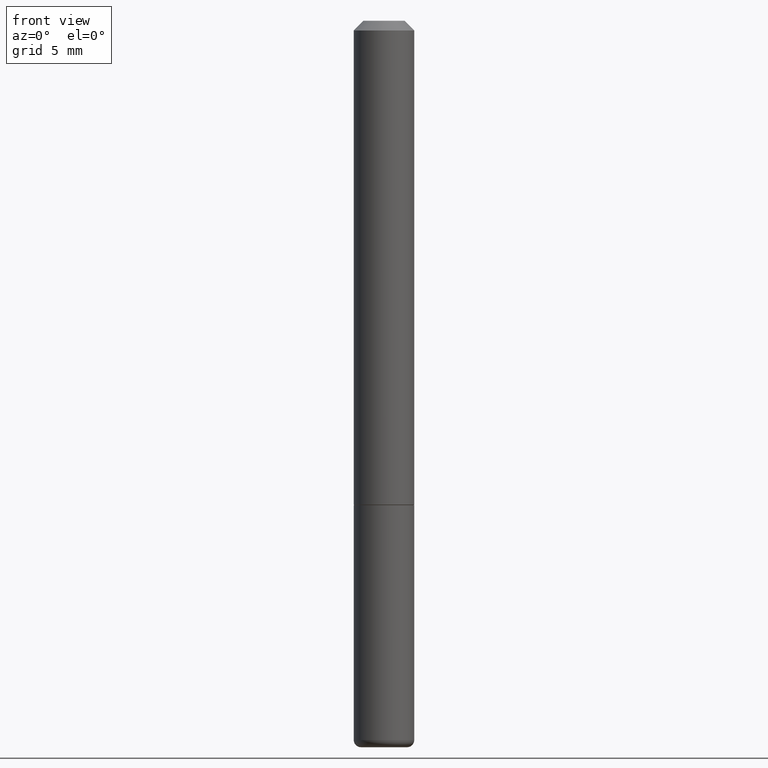
[diagram: clean part render]
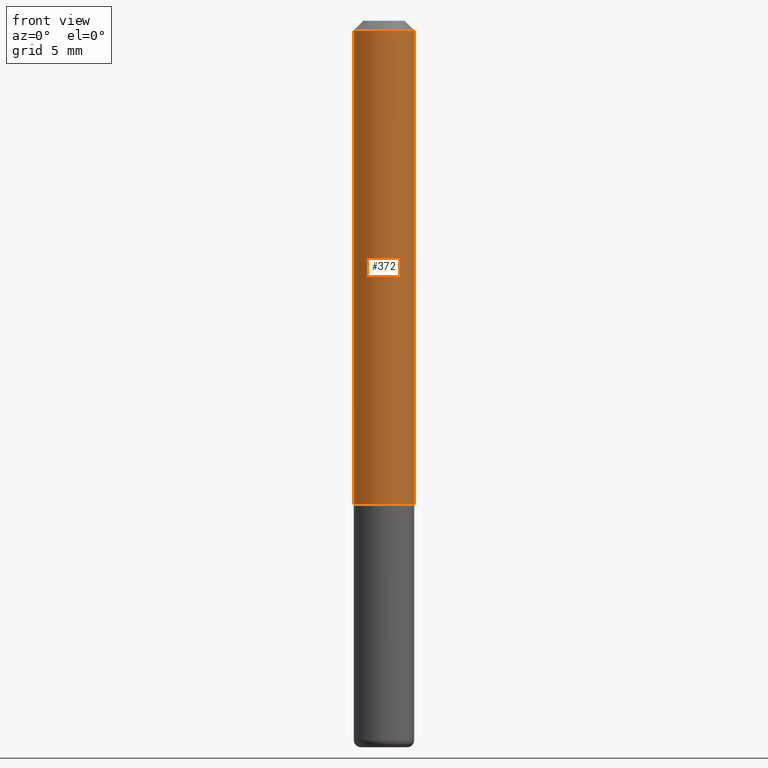
[diagram: same view with one face highlighted and labeled with its STEP entity id]
A machine part, front view. The second image highlights one B-rep face of the part: STEP entity #372.
In plain terms, the highlighted cylindrical surface (edge-blend (fillet) strip) has radius 1.5875 mm, axis along (-0, 0, 1).
Its self-contained STEP definition (entity closure, byte-faithful):
#2 = AXIS2_PLACEMENT_3D ( 'NONE', #435, #329, #359 ) ;
#6 = CARTESIAN_POINT ( 'NONE',  ( -0.06249999999999988204, 4.440892098500617780E-16, -3.074334431409310158E-30 ) ) ;
#10 = CIRCLE ( 'NONE', #152, 0.06249999999999981265 ) ;
#30 = VECTOR ( 'NONE', #295, 39.37007874015748143 ) ;
#35 = ORIENTED_EDGE ( 'NONE', *, *, #327, .F. ) ;
#57 = LINE ( 'NONE', #6, #162 ) ;
#62 = CARTESIAN_POINT ( 'NONE',  ( 0.06249999999999988204, -4.364351673553908312E-16, 3.047610484872453915E-30 ) ) ;
#69 = ORIENTED_EDGE ( 'NONE', *, *, #210, .T. ) ;
#70 = CARTESIAN_POINT ( 'NONE',  ( 0.000000000000000000, 0.000000000000000000, 0.000000000000000000 ) ) ;
#90 = LINE ( 'NONE', #62, #30 ) ;
#96 = FACE_OUTER_BOUND ( 'NONE', #356, .T. ) ;
#125 = CARTESIAN_POINT ( 'NONE',  ( 0.06249999999999981265, -4.986107516375823445E-16, -0.01999999999999999001 ) ) ;
#135 = CARTESIAN_POINT ( 'NONE',  ( 0.06249999999999995143, -3.924425024859695428E-15, -0.9990000000000004432 ) ) ;
#137 = DIRECTION ( 'NONE',  ( -2.445468806185136877E-29, 3.491481338843145188E-15, 1.000000000000000000 ) ) ;
#139 = DIRECTION ( 'NONE',  ( 1.000000000000000000, -6.982962677686266711E-15, 0.000000000000000000 ) ) ;
#152 = AXIS2_PLACEMENT_3D ( 'NONE', #239, #306, #139 ) ;
#162 = VECTOR ( 'NONE', #137, 39.37007874015748143 ) ;
#174 = ORIENTED_EDGE ( 'NONE', *, *, #312, .F. ) ;
#200 = DIRECTION ( 'NONE',  ( -2.445468806185136597E-29, 3.491481338843145583E-15, 1.000000000000000000 ) ) ;
#210 = EDGE_CURVE ( 'NONE', #378, #248, #90, .T. ) ;
#222 = CARTESIAN_POINT ( 'NONE',  ( -0.06249999999999981265, 3.666055405785274344E-16, -0.01999999999999999001 ) ) ;
#239 = CARTESIAN_POINT ( 'NONE',  ( 4.890937612370270531E-31, -6.982962677686289144E-17, -0.01999999999999999001 ) ) ;
#248 = VERTEX_POINT ( 'NONE', #125 ) ;
#266 = VERTEX_POINT ( 'NONE', #334 ) ;
#277 = EDGE_CURVE ( 'NONE', #266, #378, #279, .T. ) ;
#279 = CIRCLE ( 'NONE', #2, 0.06249999999999995143 ) ;
#295 = DIRECTION ( 'NONE',  ( -2.445468806185136877E-29, 3.491481338843145188E-15, 1.000000000000000000 ) ) ;
#297 = ORIENTED_EDGE ( 'NONE', *, *, #277, .T. ) ;
#301 = VERTEX_POINT ( 'NONE', #222 ) ;
#306 = DIRECTION ( 'NONE',  ( -2.445468806185136597E-29, 3.491481338843145583E-15, 1.000000000000000000 ) ) ;
#312 = EDGE_CURVE ( 'NONE', #266, #301, #57, .T. ) ;
#327 = EDGE_CURVE ( 'NONE', #301, #248, #10, .T. ) ;
#329 = DIRECTION ( 'NONE',  ( -2.445468806185136597E-29, 3.491481338843145583E-15, 1.000000000000000000 ) ) ;
#334 = CARTESIAN_POINT ( 'NONE',  ( -0.06249999999999995143, -1.334820532290519137E-15, -0.9990000000000004432 ) ) ;
#344 = DIRECTION ( 'NONE',  ( 1.000000000000000000, -6.982962677686266711E-15, 4.876176775795935232E-29 ) ) ;
#356 = EDGE_LOOP ( 'NONE', ( #174, #297, #69, #35 ) ) ;
#359 = DIRECTION ( 'NONE',  ( 1.000000000000000000, -6.982962677686268288E-15, 0.000000000000000000 ) ) ;
#372 = ADVANCED_FACE ( 'NONE', ( #96 ), #409, .T. ) ;
#378 = VERTEX_POINT ( 'NONE', #135 ) ;
#409 = CYLINDRICAL_SURFACE ( 'NONE', #420, 0.06249999999999988204 ) ;
#420 = AXIS2_PLACEMENT_3D ( 'NONE', #70, #200, #344 ) ;
#435 = CARTESIAN_POINT ( 'NONE',  ( 2.443023337378952675E-29, -3.487989857504303759E-15, -0.9990000000000004432 ) ) ;